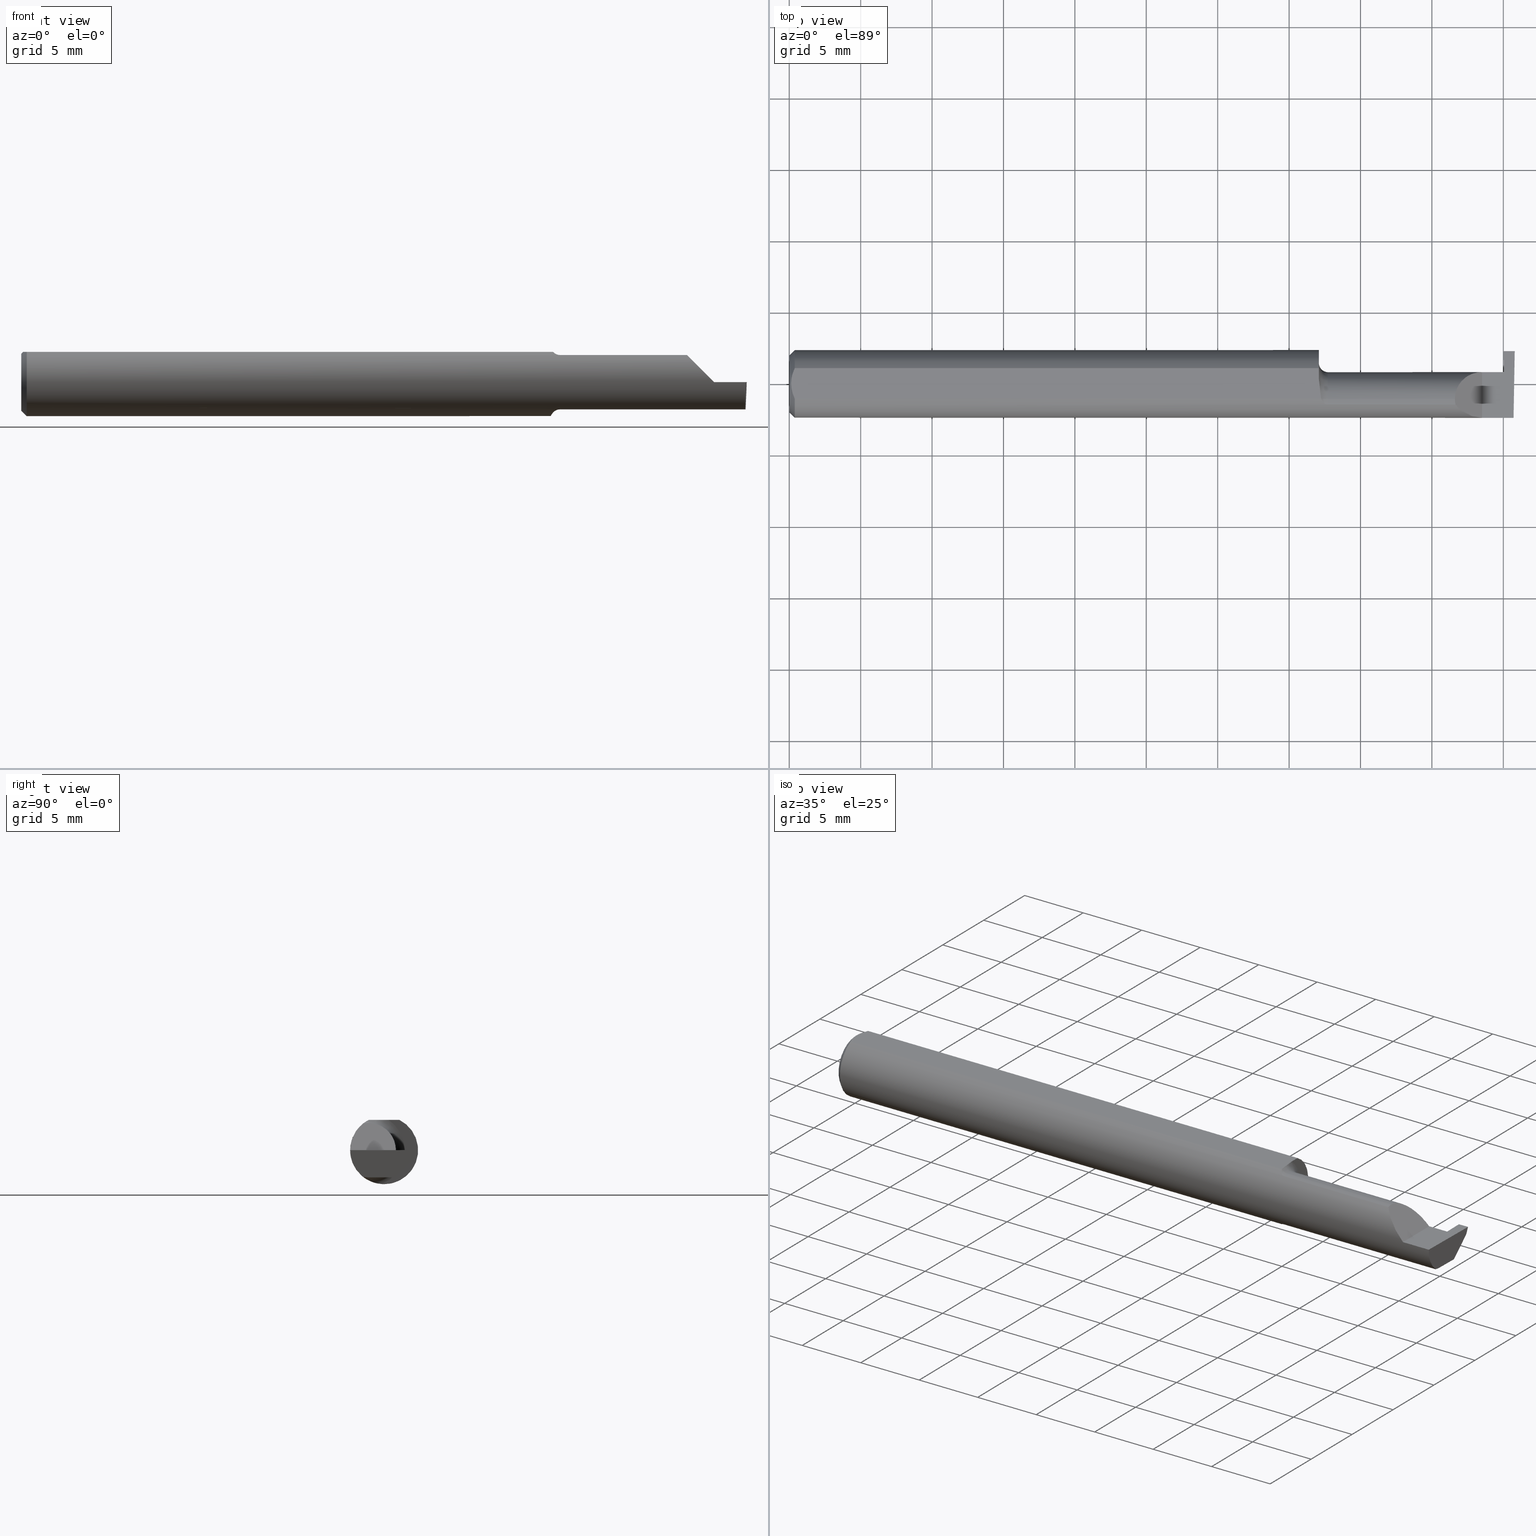
[diagram: canonical four-view strip — front | top / right | iso, engineering-drawing reading convention]
A machine part, canonical four-view strip (front | top / right | iso — engineering-drawing reading convention). The complete STEP part file that produces these views, byte-faithful:
ISO-10303-21;
HEADER;
FILE_DESCRIPTION (( 'STEP AP203' ),
    '1' );
FILE_NAME ('220674-GT030K-8.STEP',
    '2024-07-12T17:38:18',
    ( '' ),
    ( '' ),
    'SwSTEP 2.0',
    'SolidWorks 2024',
    '' );
FILE_SCHEMA (( 'CONFIG_CONTROL_DESIGN' ));
ENDSEC;

DATA;
#1 = CARTESIAN_POINT ( 'NONE',  ( 1.995715029210241243, -0.04259999999999997816, -0.07499999999999998335 ) ) ;
#2 = ORIENTED_EDGE ( 'NONE', *, *, #414, .T. ) ;
#3 = DIRECTION ( 'NONE',  ( -0.03056411404777943305, -0.3418603543644915810, -0.9392536042231929283 ) ) ;
#4 = AXIS2_PLACEMENT_3D ( 'NONE', #117, #581, #765 ) ;
#5 = DIRECTION ( 'NONE',  ( 0.000000000000000000, 0.000000000000000000, 1.000000000000000000 ) ) ;
#6 = VERTEX_POINT ( 'NONE', #578 ) ;
#7 = DIRECTION ( 'NONE',  ( 0.05230942393460497747, 0.000000000000000000, -0.9986309249005007604 ) ) ;
#8 = PERSON_AND_ORGANIZATION ( #118, #774 ) ;
#9 = CARTESIAN_POINT ( 'NONE',  ( 1.910000000000000142, 0.03239999999999999131, 1.102182119232621301E-17 ) ) ;
#10 = ADVANCED_FACE ( 'NONE', ( #171 ), #183, .F. ) ;
#11 = ORIENTED_EDGE ( 'NONE', *, *, #489, .F. ) ;
#12 = CARTESIAN_POINT ( 'NONE',  ( 1.484999999999999876, -0.04259999999999997816, 0.07499999999999998335 ) ) ;
#13 = PLANE ( 'NONE',  #407 ) ;
#14 = CC_DESIGN_PERSON_AND_ORGANIZATION_ASSIGNMENT ( #8, #325, ( #435 ) ) ;
#15 = ORIENTED_EDGE ( 'NONE', *, *, #110, .F. ) ;
#16 = FACE_OUTER_BOUND ( 'NONE', #206, .T. ) ;
#17 = VERTEX_POINT ( 'NONE', #655 ) ;
#18 = PLANE ( 'NONE',  #314 ) ;
#19 = ADVANCED_FACE ( 'NONE', ( #369 ), #13, .F. ) ;
#20 = CARTESIAN_POINT ( 'NONE',  ( 1.459999999999999964, -0.04259999999999998510, 0.07499999999999998335 ) ) ;
#21 = CARTESIAN_POINT ( 'NONE',  ( 2.000000000000000000, -0.04259999999999999204, -0.07499999999999998335 ) ) ;
#22 = VECTOR ( 'NONE', #722, 39.37007874015748854 ) ;
#23 = EDGE_CURVE ( 'NONE', #479, #6, #607, .T. ) ;
#24 = EDGE_LOOP ( 'NONE', ( #782, #269, #163, #208 ) ) ;
#25 =( BOUNDED_CURVE ( )  B_SPLINE_CURVE ( 3, ( #424, #535, #197, #9 ),
 .UNSPECIFIED., .F., .T. ) 
 B_SPLINE_CURVE_WITH_KNOTS ( ( 4, 4 ),
 ( 0.000000000000000000, 1.570796326794896558 ),
 .UNSPECIFIED. ) 
 CURVE ( )  GEOMETRIC_REPRESENTATION_ITEM ( )  RATIONAL_B_SPLINE_CURVE ( ( 1.000000000000000000, 0.8047378541243649375, 0.8047378541243649375, 1.000000000000000000 ) ) 
 REPRESENTATION_ITEM ( '' )  );
#26 = CARTESIAN_POINT ( 'NONE',  ( 0.004999999999999986226, 1.025183015402604432E-17, 0.08359999999999999376 ) ) ;
#27 = DIRECTION ( 'NONE',  ( 0.000000000000000000, 0.000000000000000000, 1.000000000000000000 ) ) ;
#28 = DIRECTION ( 'NONE',  ( 0.7071067811865481278, 0.000000000000000000, -0.7071067811865469066 ) ) ;
#29 = VERTEX_POINT ( 'NONE', #718 ) ;
#30 = CARTESIAN_POINT ( 'NONE',  ( 1.460436655799339123, -0.01945041057485635827, -0.09177104786119411051 ) ) ;
#31 = DIRECTION ( 'NONE',  ( -1.000000000000000000, -0.000000000000000000, -0.000000000000000000 ) ) ;
#32 = CC_DESIGN_APPROVAL ( #231, ( #435 ) ) ;
#33 = AXIS2_PLACEMENT_3D ( 'NONE', #638, #101, #343 ) ;
#34 = ORIENTED_EDGE ( 'NONE', *, *, #305, .F. ) ;
#35 = PRODUCT ( '220674-GT030K-8', '220674-GT030K-8', '', ( #233 ) ) ;
#36 = DIRECTION ( 'NONE',  ( -1.224646799147358877E-16, 0.000000000000000000, -1.000000000000000000 ) ) ;
#37 = CARTESIAN_POINT ( 'NONE',  ( 1.466356684838558522, -0.04259999999999997816, 0.08334386600104415344 ) ) ;
#38 = EDGE_CURVE ( 'NONE', #612, #393, #25, .T. ) ;
#39 = VERTEX_POINT ( 'NONE', #70 ) ;
#40 = LINE ( 'NONE', #55, #468 ) ;
#41 = DIRECTION ( 'NONE',  ( -0.03084274406794415904, -0.7067703747110382073, -0.7067703747110356538 ) ) ;
#42 = VERTEX_POINT ( 'NONE', #781 ) ;
#43 = EDGE_CURVE ( 'NONE', #42, #462, #312, .T. ) ;
#44 = DIRECTION ( 'NONE',  ( -0.7071067811865460184, 0.000000000000000000, 0.7071067811865490160 ) ) ;
#45 = FACE_OUTER_BOUND ( 'NONE', #242, .T. ) ;
#46 = ORIENTED_EDGE ( 'NONE', *, *, #275, .T. ) ;
#47 = VECTOR ( 'NONE', #293, 39.37007874015748143 ) ;
#48 = DIRECTION ( 'NONE',  ( 1.000000000000000000, 0.000000000000000000, 0.000000000000000000 ) ) ;
#49 = CARTESIAN_POINT ( 'NONE',  ( 0.000000000000000000, 0.000000000000000000, 0.000000000000000000 ) ) ;
#50 = EDGE_CURVE ( 'NONE', #39, #450, #366, .T. ) ;
#51 = ORIENTED_EDGE ( 'NONE', *, *, #414, .F. ) ;
#52 = ADVANCED_FACE ( 'NONE', ( #318 ), #261, .F. ) ;
#53 = CARTESIAN_POINT ( 'NONE',  ( 1.972825615918400111, -0.1004734632187760518, 3.327902248433222755E-18 ) ) ;
#54 = ORIENTED_EDGE ( 'NONE', *, *, #330, .T. ) ;
#55 = CARTESIAN_POINT ( 'NONE',  ( 1.970187911046528573, 0.08532170653269677274, -0.01716285901624537910 ) ) ;
#56 = DIRECTION ( 'NONE',  ( 0.04124162102273657565, 0.0006089328293544640823, -0.9991490168619624468 ) ) ;
#57 = ORIENTED_EDGE ( 'NONE', *, *, #591, .F. ) ;
#58 = VECTOR ( 'NONE', #100, 39.37007874015748143 ) ;
#59 = CIRCLE ( 'NONE', #287, 0.09359999999999998876 ) ;
#60 = DIRECTION ( 'NONE',  ( -1.000000000000000000, -0.000000000000000000, -0.000000000000000000 ) ) ;
#61 = FACE_OUTER_BOUND ( 'NONE', #24, .T. ) ;
#62 = ORIENTED_EDGE ( 'NONE', *, *, #348, .T. ) ;
#63 =( BOUNDED_CURVE ( )  B_SPLINE_CURVE ( 3, ( #313, #546, #565, #513 ),
 .UNSPECIFIED., .F., .T. ) 
 B_SPLINE_CURVE_WITH_KNOTS ( ( 4, 4 ),
 ( 0.08204942185700607460, 0.9826237902196914842 ),
 .UNSPECIFIED. ) 
 CURVE ( )  GEOMETRIC_REPRESENTATION_ITEM ( )  RATIONAL_B_SPLINE_CURVE ( ( 1.000000000000000000, 0.9335481000009943076, 0.9335481000009943076, 1.000000000000000000 ) ) 
 REPRESENTATION_ITEM ( '' )  );
#64 = CARTESIAN_POINT ( 'NONE',  ( 1.970284083932823727, 0.02994487577554157814, -0.01903262984222200277 ) ) ;
#65 = PERSON_AND_ORGANIZATION ( #118, #774 ) ;
#66 = DIRECTION ( 'NONE',  ( -0.000000000000000000, 1.000000000000000000, 1.224646799147353207E-16 ) ) ;
#67 = ORIENTED_EDGE ( 'NONE', *, *, #167, .T. ) ;
#68 = EDGE_CURVE ( 'NONE', #462, #419, #429, .T. ) ;
#69 = PLANE ( 'NONE',  #760 ) ;
#70 = CARTESIAN_POINT ( 'NONE',  ( 1.484999999999999876, -0.05810704225352113922, 0.07337936794867823409 ) ) ;
#71 = LINE ( 'NONE', #263, #138 ) ;
#72 = ADVANCED_FACE ( 'NONE', ( #61 ), #436, .T. ) ;
#73 = AXIS2_PLACEMENT_3D ( 'NONE', #323, #624, #276 ) ;
#74 = LINE ( 'NONE', #381, #601 ) ;
#75 = ORIENTED_EDGE ( 'NONE', *, *, #130, .F. ) ;
#76 = LINE ( 'NONE', #538, #448 ) ;
#77 = CC_DESIGN_DATE_AND_TIME_ASSIGNMENT ( #720, #599, ( #417 ) ) ;
#78 = CARTESIAN_POINT ( 'NONE',  ( 1.484999999999999876, -0.04259999999999998510, 0.000000000000000000 ) ) ;
#79 = VERTEX_POINT ( 'NONE', #486 ) ;
#80 = CARTESIAN_POINT ( 'NONE',  ( 1.470264545693809488, -0.04993027844100268037, -0.07924826417278514612 ) ) ;
#81 = DATE_AND_TIME ( #492, #337 ) ;
#82 = ORIENTED_EDGE ( 'NONE', *, *, #523, .F. ) ;
#83 = CARTESIAN_POINT ( 'NONE',  ( 1.476446782524424073, -0.05558685324519236498, -0.07531605361338915283 ) ) ;
#84 = CARTESIAN_POINT ( 'NONE',  ( 1.727249999999999952, -0.05810704225352113922, 0.07337936794867823409 ) ) ;
#85 = VECTOR ( 'NONE', #3, 39.37007874015748143 ) ;
#86 = CARTESIAN_POINT ( 'NONE',  ( 1.996678706298551376, -0.09994204647866641866, 4.067411700507134861E-19 ) ) ;
#87 = ORIENTED_EDGE ( 'NONE', *, *, #579, .F. ) ;
#88 = CARTESIAN_POINT ( 'NONE',  ( 0.01499999999999999944, 0.000000000000000000, -0.09359999999999998876 ) ) ;
#89 = AXIS2_PLACEMENT_3D ( 'NONE', #124, #548, #732 ) ;
#90 = ORIENTED_EDGE ( 'NONE', *, *, #744, .T. ) ;
#91 = CARTESIAN_POINT ( 'NONE',  ( 1.835000000000000187, -0.04781600192481537392, 0.07499999999999998335 ) ) ;
#92 = CARTESIAN_POINT ( 'NONE',  ( 1.969499999999999806, 0.03239999167003562025, -3.534818988851013615E-05 ) ) ;
#93 = LINE ( 'NONE', #21, #508 ) ;
#94 = ORIENTED_EDGE ( 'NONE', *, *, #235, .T. ) ;
#95 = DIRECTION ( 'NONE',  ( 0.02618093032612054880, 0.000000000000000000, 0.9996572206948033390 ) ) ;
#96 = LOCAL_TIME ( 10, 38, 18.00000000000000000, #385 ) ;
#97 = EDGE_CURVE ( 'NONE', #730, #39, #166, .T. ) ;
#98 = ORIENTED_EDGE ( 'NONE', *, *, #156, .T. ) ;
#99 = AXIS2_PLACEMENT_3D ( 'NONE', #697, #357, #176 ) ;
#100 = DIRECTION ( 'NONE',  ( -0.01744642479411313493, -0.9998477995484629233, 3.463134274570152404E-16 ) ) ;
#101 = DIRECTION ( 'NONE',  ( 1.000000000000000000, 0.000000000000000000, 0.000000000000000000 ) ) ;
#102 = ORIENTED_EDGE ( 'NONE', *, *, #252, .F. ) ;
#103 =( LENGTH_UNIT ( ) NAMED_UNIT ( * ) SI_UNIT ( $, .METRE. ) );
#104 = CARTESIAN_POINT ( 'NONE',  ( 0.005975039161239316735, -0.01453776427033148973, 0.08360000000000000764 ) ) ;
#105 = EDGE_LOOP ( 'NONE', ( #597, #224, #280, #51 ) ) ;
#106 = EDGE_CURVE ( 'NONE', #586, #644, #480, .T. ) ;
#107 = DIRECTION ( 'NONE',  ( 0.000000000000000000, -1.000000000000000000, 3.463308682636258767E-16 ) ) ;
#108 = DIRECTION ( 'NONE',  ( 0.000000000000000000, 0.000000000000000000, 1.000000000000000000 ) ) ;
#109 =( BOUNDED_CURVE ( )  B_SPLINE_CURVE ( 3, ( #616, #301, #534, #779 ),
 .UNSPECIFIED., .F., .T. ) 
 B_SPLINE_CURVE_WITH_KNOTS ( ( 4, 4 ),
 ( 3.140983202202990654, 4.455205321888858094 ),
 .UNSPECIFIED. ) 
 CURVE ( )  GEOMETRIC_REPRESENTATION_ITEM ( )  RATIONAL_B_SPLINE_CURVE ( ( 1.000000000000000000, 0.8611734602017921958, 0.8611734602017921958, 1.000000000000000000 ) ) 
 REPRESENTATION_ITEM ( '' )  );
#110 = EDGE_CURVE ( 'NONE', #262, #452, #74, .T. ) ;
#111 = ORIENTED_EDGE ( 'NONE', *, *, #387, .T. ) ;
#112 = TOROIDAL_SURFACE ( 'NONE', #227, 0.09999999999999999167, 0.02500000000000007425 ) ;
#113 = FACE_OUTER_BOUND ( 'NONE', #295, .T. ) ;
#114 = CARTESIAN_POINT ( 'NONE',  ( 0.009539353699420717939, -0.02875682547511373283, 0.08359999999999997988 ) ) ;
#115 = EDGE_LOOP ( 'NONE', ( #344, #125, #67, #54, #473 ) ) ;
#116 = DIRECTION ( 'NONE',  ( -0.7071067811865490160, 0.000000000000000000, -0.7071067811865460184 ) ) ;
#117 = CARTESIAN_POINT ( 'NONE',  ( 2.000000000000000000, -0.09360000000000003040, 0.08359999999999999376 ) ) ;
#118 = PERSON ( 'UNSPECIFIED', 'UNSPECIFIED', 'UNSPECIFIED', ('UNSPECIFIED'), ('UNSPECIFIED'), ('UNSPECIFIED') ) ;
#119 = ORIENTED_EDGE ( 'NONE', *, *, #289, .T. ) ;
#120 = CARTESIAN_POINT ( 'NONE',  ( 0.004999999999999974083, -0.007328888879231052096, 0.08359999999999997988 ) ) ;
#121 = CALENDAR_DATE ( 2024, 12, 7 ) ;
#122 = CARTESIAN_POINT ( 'NONE',  ( 1.995624014772495514, -0.04781600192481526984, -0.07499999999999996947 ) ) ;
#123 = LINE ( 'NONE', #202, #85 ) ;
#124 = CARTESIAN_POINT ( 'NONE',  ( 1.459999999999999964, -0.04259999999999998510, 0.000000000000000000 ) ) ;
#125 = ORIENTED_EDGE ( 'NONE', *, *, #294, .F. ) ;
#126 = CARTESIAN_POINT ( 'NONE',  ( 1.969499999999999806, 0.09040000000000000813, -3.918869757271545852E-19 ) ) ;
#127 = AXIS2_PLACEMENT_3D ( 'NONE', #551, #726, #5 ) ;
#128 = CARTESIAN_POINT ( 'NONE',  ( 1.899999999999999911, 0.09040000000000000813, -3.918869757271545852E-19 ) ) ;
#129 = ORIENTED_EDGE ( 'NONE', *, *, #356, .T. ) ;
#130 = EDGE_CURVE ( 'NONE', #536, #458, #531, .T. ) ;
#131 = CARTESIAN_POINT ( 'NONE',  ( 1.484999999999999876, -0.04259999999999997816, 0.000000000000000000 ) ) ;
#132 = EDGE_CURVE ( 'NONE', #29, #462, #162, .T. ) ;
#133 = CARTESIAN_POINT ( 'NONE',  ( 1.474746577633804234, -0.05429945193459817521, 0.07626038032150797563 ) ) ;
#134 = ORIENTED_EDGE ( 'NONE', *, *, #97, .T. ) ;
#135 = VECTOR ( 'NONE', #28, 39.37007874015748143 ) ;
#136 = CARTESIAN_POINT ( 'NONE',  ( 1.484999999999999876, -0.04259999999999997122, -0.07499999999999998335 ) ) ;
#137 = APPROVAL_DATE_TIME ( #737, #231 ) ;
#138 = VECTOR ( 'NONE', #155, 39.37007874015748143 ) ;
#139 = DIRECTION ( 'NONE',  ( 0.000000000000000000, 0.000000000000000000, -1.000000000000000000 ) ) ;
#140 = ORIENTED_EDGE ( 'NONE', *, *, #463, .F. ) ;
#141 = CARTESIAN_POINT ( 'NONE',  ( 1.969499999999999806, 0.03239999167003562025, -3.534818988851013615E-05 ) ) ;
#142 = VERTEX_POINT ( 'NONE', #483 ) ;
#143 = CARTESIAN_POINT ( 'NONE',  ( 1.474728336617688651, -0.05428341532129050961, -0.07627162539867091140 ) ) ;
#144 = ORIENTED_EDGE ( 'NONE', *, *, #561, .F. ) ;
#145 = DESIGN_CONTEXT ( 'detailed design', #223, 'design' ) ;
#146 = PLANE ( 'NONE',  #572 ) ;
#147 = PERSON_AND_ORGANIZATION ( #118, #774 ) ;
#148 = CARTESIAN_POINT ( 'NONE',  ( 1.969395642961975890, 0.09132040434161205200, 0.002528790145347101052 ) ) ;
#149 = VECTOR ( 'NONE', #180, 39.37007874015748143 ) ;
#150 = EDGE_CURVE ( 'NONE', #351, #359, #563, .T. ) ;
#151 = ORIENTED_EDGE ( 'NONE', *, *, #38, .F. ) ;
#152 = DIRECTION ( 'NONE',  ( 1.000000000000000000, 0.000000000000000000, 0.000000000000000000 ) ) ;
#153 = PLANE ( 'NONE',  #570 ) ;
#154 = ORIENTED_EDGE ( 'NONE', *, *, #387, .F. ) ;
#155 = DIRECTION ( 'NONE',  ( -1.000000000000000000, -7.220189035068028073E-16, 1.224646799147358877E-16 ) ) ;
#156 = EDGE_CURVE ( 'NONE', #215, #696, #747, .T. ) ;
#157 = ORIENTED_EDGE ( 'NONE', *, *, #23, .T. ) ;
#158 = DIRECTION ( 'NONE',  ( 0.000000000000000000, 0.000000000000000000, 1.000000000000000000 ) ) ;
#159 = CC_DESIGN_PERSON_AND_ORGANIZATION_ASSIGNMENT ( #556, #311, ( #240 ) ) ;
#160 = PLANE ( 'NONE',  #33 ) ;
#161 =( GEOMETRIC_REPRESENTATION_CONTEXT ( 3 ) GLOBAL_UNCERTAINTY_ASSIGNED_CONTEXT ( ( #185 ) ) GLOBAL_UNIT_ASSIGNED_CONTEXT ( ( #580, #519, #761 ) ) REPRESENTATION_CONTEXT ( 'NONE', 'WORKASPACE' ) );
#162 = CIRCLE ( 'NONE', #635, 0.02500000000000007425 ) ;
#163 = ORIENTED_EDGE ( 'NONE', *, *, #50, .F. ) ;
#164 = DIRECTION ( 'NONE',  ( -0.03699114979479856125, 0.7066228325057372084, 0.7066228325057346549 ) ) ;
#165 = DIRECTION ( 'NONE',  ( 0.000000000000000000, 0.000000000000000000, 1.000000000000000000 ) ) ;
#166 = B_SPLINE_CURVE_WITH_KNOTS ( 'NONE', 3,
 ( #476, #259, #602, #133, #431, #190, #610, #248 ),
 .UNSPECIFIED., .F., .F.,
 ( 4, 2, 2, 4 ),
 ( 1.584523690453573094E-05, 0.0003656721978374746925, 0.0005405856783039505531, 0.0007154991587704265764 ),
 .UNSPECIFIED. ) ;
#167 = EDGE_CURVE ( 'NONE', #458, #288, #440, .T. ) ;
#168 = ORIENTED_EDGE ( 'NONE', *, *, #630, .F. ) ;
#169 = AXIS2_PLACEMENT_3D ( 'NONE', #316, #596, #194 ) ;
#170 = DIRECTION ( 'NONE',  ( 0.01742050049977865445, -0.9998482515673751125, -2.130797594925077101E-18 ) ) ;
#171 = FACE_OUTER_BOUND ( 'NONE', #512, .T. ) ;
#172 = PERSON_AND_ORGANIZATION_ROLE ( 'design_owner' ) ;
#173 = CARTESIAN_POINT ( 'NONE',  ( 1.484999999999999876, -0.04259999999999998510, 0.000000000000000000 ) ) ;
#174 = LOCAL_TIME ( 10, 38, 18.00000000000000000, #646 ) ;
#175 = ORIENTED_EDGE ( 'NONE', *, *, #567, .F. ) ;
#176 = DIRECTION ( 'NONE',  ( 0.000000000000000000, 0.000000000000000000, 1.000000000000000000 ) ) ;
#177 = CIRCLE ( 'NONE', #647, 0.09359999999999998876 ) ;
#178 = LINE ( 'NONE', #418, #211 ) ;
#179 = VERTEX_POINT ( 'NONE', #675 ) ;
#180 = DIRECTION ( 'NONE',  ( -1.000000000000000000, -0.000000000000000000, -0.000000000000000000 ) ) ;
#181 = COORDINATED_UNIVERSAL_TIME_OFFSET ( 8, 0, .BEHIND. ) ;
#182 = ADVANCED_FACE ( 'NONE', ( #327 ), #212, .F. ) ;
#183 = PLANE ( 'NONE',  #728 ) ;
#184 = DIRECTION ( 'NONE',  ( -1.000000000000000000, -0.000000000000000000, -0.000000000000000000 ) ) ;
#185 = UNCERTAINTY_MEASURE_WITH_UNIT (LENGTH_MEASURE( 1.000000000000000082E-05 ), #580, 'distance_accuracy_value', 'NONE');
#186 = DIRECTION ( 'NONE',  ( -1.000000000000000000, -0.000000000000000000, -0.000000000000000000 ) ) ;
#187 = EDGE_LOOP ( 'NONE', ( #416, #507, #748, #767, #236, #619, #232 ) ) ;
#188 = VECTOR ( 'NONE', #481, 39.37007874015748143 ) ;
#189 = CARTESIAN_POINT ( 'NONE',  ( 0.01499999999999999944, 0.000000000000000000, 0.000000000000000000 ) ) ;
#190 = CARTESIAN_POINT ( 'NONE',  ( 1.480389214148234434, -0.05750155061631040398, 0.07386444488392698848 ) ) ;
#191 = EDGE_CURVE ( 'NONE', #644, #42, #93, .T. ) ;
#192 = CARTESIAN_POINT ( 'NONE',  ( 1.974734127201016820, 0.09049136203013627422, -0.1499086240528643699 ) ) ;
#193 = ADVANCED_FACE ( 'NONE', ( #547 ), #153, .F. ) ;
#194 = DIRECTION ( 'NONE',  ( 0.000000000000000000, 0.0006094513490878463065, -0.9999998142845092364 ) ) ;
#195 = ORIENTED_EDGE ( 'NONE', *, *, #243, .F. ) ;
#196 = CARTESIAN_POINT ( 'NONE',  ( 0.000000000000000000, 0.000000000000000000, -0.07860000000000001708 ) ) ;
#197 = CARTESIAN_POINT ( 'NONE',  ( 1.866066017177982594, 0.03239999999999998437, 0.04393398282201787380 ) ) ;
#198 = DIMENSIONAL_EXPONENTS ( 1.000000000000000000, 0.000000000000000000, 0.000000000000000000, 0.000000000000000000, 0.000000000000000000, 0.000000000000000000, 0.000000000000000000 ) ;
#199 = APPROVAL_PERSON_ORGANIZATION ( #614, #231, #434 ) ;
#200 = LOCAL_TIME ( 10, 38, 18.00000000000000000, #181 ) ;
#201 = VECTOR ( 'NONE', #626, 39.37007874015748143 ) ;
#202 = CARTESIAN_POINT ( 'NONE',  ( 1.999906583493247680, 0.08935513411407894346, -0.002870745427926564477 ) ) ;
#203 = AXIS2_PLACEMENT_3D ( 'NONE', #686, #444, #221 ) ;
#204 = CARTESIAN_POINT ( 'NONE',  ( 1.459999999999999742, -0.09360000000000003040, 0.08359999999999999376 ) ) ;
#205 = ORIENTED_EDGE ( 'NONE', *, *, #684, .F. ) ;
#206 = EDGE_LOOP ( 'NONE', ( #370, #333, #388 ) ) ;
#207 = FACE_OUTER_BOUND ( 'NONE', #495, .T. ) ;
#208 = ORIENTED_EDGE ( 'NONE', *, *, #243, .T. ) ;
#209 = CARTESIAN_POINT ( 'NONE',  ( 1.459999999999999742, -0.006757276995305157297, -0.09335576686851604356 ) ) ;
#210 = DIRECTION ( 'NONE',  ( -1.000000000000000000, -0.000000000000000000, -0.000000000000000000 ) ) ;
#211 = VECTOR ( 'NONE', #56, 39.37007874015748143 ) ;
#212 = PLANE ( 'NONE',  #298 ) ;
#213 = PRODUCT_DEFINITION_SHAPE ( 'NONE', 'NONE',  #417 ) ;
#214 = EDGE_CURVE ( 'NONE', #685, #730, #543, .T. ) ;
#215 = VERTEX_POINT ( 'NONE', #755 ) ;
#216 = CARTESIAN_POINT ( 'NONE',  ( 2.000000000000000000, -0.1000000000000000056, 0.000000000000000000 ) ) ;
#217 = CARTESIAN_POINT ( 'NONE',  ( 0.01499999999999999944, 0.000000000000000000, -0.09359999999999998876 ) ) ;
#218 = ADVANCED_FACE ( 'NONE', ( #633 ), #682, .T. ) ;
#219 = CC_DESIGN_PERSON_AND_ORGANIZATION_ASSIGNMENT ( #704, #172, ( #35 ) ) ;
#220 = ORIENTED_EDGE ( 'NONE', *, *, #762, .T. ) ;
#221 = DIRECTION ( 'NONE',  ( 0.000000000000000000, 0.000000000000000000, -1.000000000000000000 ) ) ;
#222 = CARTESIAN_POINT ( 'NONE',  ( 1.459999999999999964, -0.04259999999999998510, 0.000000000000000000 ) ) ;
#223 = APPLICATION_CONTEXT ( 'configuration controlled 3d designs of mechanical parts and assemblies' ) ;
#224 = ORIENTED_EDGE ( 'NONE', *, *, #762, .F. ) ;
#225 = CARTESIAN_POINT ( 'NONE',  ( 2.000000000000000000, 0.05599964285600403380, -0.07500000000000002498 ) ) ;
#226 = CARTESIAN_POINT ( 'NONE',  ( 1.466082007218903138, -0.03301619840524110810, 0.08359999999999997988 ) ) ;
#227 = AXIS2_PLACEMENT_3D ( 'NONE', #131, #184, #783 ) ;
#228 = ORIENTED_EDGE ( 'NONE', *, *, #156, .F. ) ;
#229 = CARTESIAN_POINT ( 'NONE',  ( 1.997436282896842163, 0.05604437736224970185, -0.07500000000000002498 ) ) ;
#230 = CARTESIAN_POINT ( 'NONE',  ( 1.969499999999999806, 0.03240000000000000518, 6.613082478491649597E-17 ) ) ;
#231 = APPROVAL ( #264, 'UNSPECIFIED' ) ;
#232 = ORIENTED_EDGE ( 'NONE', *, *, #332, .T. ) ;
#233 = MECHANICAL_CONTEXT ( 'NONE', #365, 'mechanical' ) ;
#234 = CARTESIAN_POINT ( 'NONE',  ( 0.004999999999999986226, 1.025183015402604432E-17, 0.08359999999999999376 ) ) ;
#235 = EDGE_CURVE ( 'NONE', #79, #456, #395, .T. ) ;
#236 = ORIENTED_EDGE ( 'NONE', *, *, #214, .T. ) ;
#237 = DIRECTION ( 'NONE',  ( -0.000000000000000000, 3.463308682636258767E-16, 1.000000000000000000 ) ) ;
#238 = LINE ( 'NONE', #53, #390 ) ;
#239 = DATE_AND_TIME ( #247, #174 ) ;
#240 = PRODUCT_DEFINITION_FORMATION_WITH_SPECIFIED_SOURCE ( 'ANY', '', #35, .NOT_KNOWN. ) ;
#241 = VECTOR ( 'NONE', #272, 39.37007874015748143 ) ;
#242 = EDGE_LOOP ( 'NONE', ( #582, #134, #443 ) ) ;
#243 = EDGE_CURVE ( 'NONE', #39, #179, #510, .T. ) ;
#244 = LINE ( 'NONE', #349, #725 ) ;
#245 = PERSON_AND_ORGANIZATION ( #118, #774 ) ;
#246 = ORIENTED_EDGE ( 'NONE', *, *, #289, .F. ) ;
#247 = CALENDAR_DATE ( 2024, 12, 7 ) ;
#248 = CARTESIAN_POINT ( 'NONE',  ( 1.484999999999999876, -0.05810704225352113922, 0.07337936794867823409 ) ) ;
#249 = ORIENTED_EDGE ( 'NONE', *, *, #294, .T. ) ;
#250 = LINE ( 'NONE', #656, #188 ) ;
#251 = COORDINATED_UNIVERSAL_TIME_OFFSET ( 8, 0, .BEHIND. ) ;
#252 = EDGE_CURVE ( 'NONE', #304, #179, #271, .T. ) ;
#253 = DIRECTION ( 'NONE',  ( 1.000000000000000000, 0.000000000000000000, 0.000000000000000000 ) ) ;
#254 = ADVANCED_FACE ( 'NONE', ( #695 ), #160, .T. ) ;
#255 = ORIENTED_EDGE ( 'NONE', *, *, #506, .F. ) ;
#256 = AXIS2_PLACEMENT_3D ( 'NONE', #460, #643, #108 ) ;
#257 = CARTESIAN_POINT ( 'NONE',  ( 1.996937940439960535, 0.02748456554894196727, -0.07499999999999998335 ) ) ;
#258 =( BOUNDED_CURVE ( )  B_SPLINE_CURVE ( 3, ( #394, #691, #91, #389 ),
 .UNSPECIFIED., .F., .F. ) 
 B_SPLINE_CURVE_WITH_KNOTS ( ( 4, 4 ),
 ( 6.074922494366326475, 6.283185307179586232 ),
 .UNSPECIFIED. ) 
 CURVE ( )  GEOMETRIC_REPRESENTATION_ITEM ( )  RATIONAL_B_SPLINE_CURVE ( ( 1.000000000000000000, 0.9963888149483994816, 0.9963888149483994816, 1.000000000000000000 ) ) 
 REPRESENTATION_ITEM ( '' )  );
#259 = CARTESIAN_POINT ( 'NONE',  ( 1.468098441794898346, -0.04641417426599063478, 0.08139430652501544738 ) ) ;
#260 = FACE_OUTER_BOUND ( 'NONE', #105, .T. ) ;
#261 = PLANE ( 'NONE',  #169 ) ;
#262 = VERTEX_POINT ( 'NONE', #566 ) ;
#263 = CARTESIAN_POINT ( 'NONE',  ( 2.000000000000000000, 0.03240000000000002600, 1.170704816173023527E-32 ) ) ;
#264 = APPROVAL_STATUS ( 'not_yet_approved' ) ;
#265 = ORIENTED_EDGE ( 'NONE', *, *, #744, .F. ) ;
#266 = DIRECTION ( 'NONE',  ( 1.000000000000000000, 0.000000000000000000, 0.000000000000000000 ) ) ;
#267 = EDGE_CURVE ( 'NONE', #699, #452, #562, .T. ) ;
#268 = CYLINDRICAL_SURFACE ( 'NONE', #494, 0.09359999999999998876 ) ;
#269 = ORIENTED_EDGE ( 'NONE', *, *, #273, .T. ) ;
#270 = CARTESIAN_POINT ( 'NONE',  ( 1.484999999999999876, -0.05810704225352111146, -0.07337936794867824797 ) ) ;
#271 =( BOUNDED_CURVE ( )  B_SPLINE_CURVE ( 3, ( #625, #751, #455, #331 ),
 .UNSPECIFIED., .F., .T. ) 
 B_SPLINE_CURVE_WITH_KNOTS ( ( 4, 4 ),
 ( 4.712388980384689674, 5.613420356061716632 ),
 .UNSPECIFIED. ) 
 CURVE ( )  GEOMETRIC_REPRESENTATION_ITEM ( )  RATIONAL_B_SPLINE_CURVE ( ( 1.000000000000000000, 0.9334817841311877640, 0.9334817841311877640, 1.000000000000000000 ) ) 
 REPRESENTATION_ITEM ( '' )  );
#272 = DIRECTION ( 'NONE',  ( -0.000000000000000000, 1.000000000000000000, -0.000000000000000000 ) ) ;
#273 = EDGE_CURVE ( 'NONE', #612, #450, #326, .T. ) ;
#274 = ORIENTED_EDGE ( 'NONE', *, *, #428, .T. ) ;
#275 = EDGE_CURVE ( 'NONE', #304, #393, #340, .T. ) ;
#276 = DIRECTION ( 'NONE',  ( 0.000000000000000000, 0.000000000000000000, -1.000000000000000000 ) ) ;
#277 = VECTOR ( 'NONE', #618, 39.37007874015748143 ) ;
#278 = CARTESIAN_POINT ( 'NONE',  ( 1.466129652885479251, -0.04209513035970094408, 0.08359999999999999376 ) ) ;
#279 = APPROVAL ( #780, 'UNSPECIFIED' ) ;
#280 = ORIENTED_EDGE ( 'NONE', *, *, #545, .T. ) ;
#281 = LINE ( 'NONE', #628, #341 ) ;
#282 = ORIENTED_EDGE ( 'NONE', *, *, #252, .T. ) ;
#283 = CARTESIAN_POINT ( 'NONE',  ( 0.01499999999999999944, 1.146269404001922621E-17, 0.09359999999999998876 ) ) ;
#284 = CARTESIAN_POINT ( 'NONE',  ( 1.910000000000000142, -0.1000000000000000056, 1.102182119232621301E-17 ) ) ;
#285 = EDGE_LOOP ( 'NONE', ( #592, #98, #437, #2, #690, #140, #342 ) ) ;
#286 = PLANE ( 'NONE',  #374 ) ;
#287 = AXIS2_PLACEMENT_3D ( 'NONE', #770, #60, #165 ) ;
#288 = VERTEX_POINT ( 'NONE', #217 ) ;
#289 = EDGE_CURVE ( 'NONE', #79, #699, #741, .T. ) ;
#290 = CARTESIAN_POINT ( 'NONE',  ( 0.01499999999999999598, 0.04209513035969836975, 0.08359999999999999376 ) ) ;
#291 = ORIENTED_EDGE ( 'NONE', *, *, #267, .T. ) ;
#292 = DIRECTION ( 'NONE',  ( 0.7071067811865481278, 8.659560562354925463E-17, 0.7071067811865469066 ) ) ;
#293 = DIRECTION ( 'NONE',  ( -1.000000000000000000, -0.000000000000000000, -0.000000000000000000 ) ) ;
#294 = EDGE_CURVE ( 'NONE', #458, #536, #403, .T. ) ;
#295 = EDGE_LOOP ( 'NONE', ( #739, #102, #46, #151 ) ) ;
#296 = CARTESIAN_POINT ( 'NONE',  ( 0.000000000000000000, 0.04209513035969836975, 0.08359999999999999376 ) ) ;
#297 = APPROVAL_PERSON_ORGANIZATION ( #65, #713, #539 ) ;
#298 = AXIS2_PLACEMENT_3D ( 'NONE', #689, #396, #557 ) ;
#299 = ORIENTED_EDGE ( 'NONE', *, *, #150, .T. ) ;
#300 = AXIS2_PLACEMENT_3D ( 'NONE', #496, #745, #158 ) ;
#301 = CARTESIAN_POINT ( 'NONE',  ( 1.973214534726833946, -0.007134900077140474139, -0.07500000000000002498 ) ) ;
#302 = CARTESIAN_POINT ( 'NONE',  ( 1.970284083932825281, -1.938781723943637347, -0.02023247314723547463 ) ) ;
#303 = VECTOR ( 'NONE', #669, 39.37007874015748143 ) ;
#304 = VERTEX_POINT ( 'NONE', #399 ) ;
#305 = EDGE_CURVE ( 'NONE', #479, #503, #702, .T. ) ;
#306 = DIRECTION ( 'NONE',  ( 0.9992391710281356421, 0.01740988840157116357, 0.03489949668475363781 ) ) ;
#307 = APPROVAL_STATUS ( 'not_yet_approved' ) ;
#308 = CARTESIAN_POINT ( 'NONE',  ( 0.000000000000000000, 0.000000000000000000, 0.000000000000000000 ) ) ;
#309 = ORIENTED_EDGE ( 'NONE', *, *, #191, .F. ) ;
#310 = CARTESIAN_POINT ( 'NONE',  ( 0.000000000000000000, 1.054420894065871180E-17, 0.07860000000000001708 ) ) ;
#311 = PERSON_AND_ORGANIZATION_ROLE ( 'design_supplier' ) ;
#312 = LINE ( 'NONE', #422, #303 ) ;
#313 = CARTESIAN_POINT ( 'NONE',  ( 1.995486889784650053, -0.05810704225352113922, -0.07337936794867823409 ) ) ;
#314 = AXIS2_PLACEMENT_3D ( 'NONE', #216, #36, #555 ) ;
#315 = CALENDAR_DATE ( 2024, 12, 7 ) ;
#316 = CARTESIAN_POINT ( 'NONE',  ( 1.975744671832483812, 0.03249136206948449734, -0.1499086886162006582 ) ) ;
#317 = EDGE_LOOP ( 'NONE', ( #119, #291, #15, #129, #220 ) ) ;
#318 = FACE_OUTER_BOUND ( 'NONE', #541, .T. ) ;
#319 = ADVANCED_FACE ( 'NONE', ( #335 ), #268, .T. ) ;
#320 = EDGE_LOOP ( 'NONE', ( #671, #641, #408 ) ) ;
#321 = CARTESIAN_POINT ( 'NONE',  ( 1.466356684838558522, -0.04259999999999997122, -0.08334386600104412568 ) ) ;
#322 = ORIENTED_EDGE ( 'NONE', *, *, #348, .F. ) ;
#323 = CARTESIAN_POINT ( 'NONE',  ( 1.484999999999999876, -0.04259999999999997816, 0.09999999999999999167 ) ) ;
#324 = TOROIDAL_SURFACE ( 'NONE', #256, 0.09999999999999999167, 0.02500000000000007425 ) ;
#325 = PERSON_AND_ORGANIZATION_ROLE ( 'classification_officer' ) ;
#326 = LINE ( 'NONE', #20, #734 ) ;
#327 = FACE_OUTER_BOUND ( 'NONE', #317, .T. ) ;
#328 = VERTEX_POINT ( 'NONE', #758 ) ;
#329 = DIRECTION ( 'NONE',  ( -1.000000000000000000, -0.000000000000000000, -0.000000000000000000 ) ) ;
#330 = EDGE_CURVE ( 'NONE', #288, #525, #59, .T. ) ;
#331 = CARTESIAN_POINT ( 'NONE',  ( 1.836620632051322310, -0.05810704225352133351, 0.07337936794867813695 ) ) ;
#332 = EDGE_CURVE ( 'NONE', #450, #462, #482, .T. ) ;
#333 = ORIENTED_EDGE ( 'NONE', *, *, #354, .T. ) ;
#334 = CARTESIAN_POINT ( 'NONE',  ( 1.970284083932825281, -1.938781723943637347, -0.02023247314723547463 ) ) ;
#335 = FACE_OUTER_BOUND ( 'NONE', #397, .T. ) ;
#336 = ORIENTED_EDGE ( 'NONE', *, *, #606, .F. ) ;
#337 = LOCAL_TIME ( 10, 38, 18.00000000000000000, #251 ) ;
#338 = CARTESIAN_POINT ( 'NONE',  ( 1.459999999999999742, 0.000000000000000000, 0.000000000000000000 ) ) ;
#339 = AXIS2_PLACEMENT_3D ( 'NONE', #738, #678, #27 ) ;
#340 = LINE ( 'NONE', #284, #241 ) ;
#341 = VECTOR ( 'NONE', #266, 39.37007874015748143 ) ;
#342 = ORIENTED_EDGE ( 'NONE', *, *, #275, .F. ) ;
#343 = DIRECTION ( 'NONE',  ( 0.000000000000000000, 0.000000000000000000, -1.000000000000000000 ) ) ;
#344 = ORIENTED_EDGE ( 'NONE', *, *, #766, .F. ) ;
#345 = LENGTH_MEASURE_WITH_UNIT ( LENGTH_MEASURE( 0.02539999999999999897 ), #103 );
#346 = LINE ( 'NONE', #520, #584 ) ;
#347 = ORIENTED_EDGE ( 'NONE', *, *, #721, .T. ) ;
#348 = EDGE_CURVE ( 'NONE', #328, #652, #752, .T. ) ;
#349 = CARTESIAN_POINT ( 'NONE',  ( 1.994172072281005237, -0.09355431490906530867, -0.09996576130738771271 ) ) ;
#350 = AXIS2_PLACEMENT_3D ( 'NONE', #192, #306, #438 ) ;
#351 = VERTEX_POINT ( 'NONE', #467 ) ;
#352 = APPLICATION_PROTOCOL_DEFINITION ( 'international standard', 'config_control_design', 1994, #223 ) ;
#353 = CARTESIAN_POINT ( 'NONE',  ( 0.01206089165507020187, -0.03555991978469316694, 0.08359999999999999376 ) ) ;
#354 = EDGE_CURVE ( 'NONE', #503, #6, #178, .T. ) ;
#355 = ORIENTED_EDGE ( 'NONE', *, *, #629, .F. ) ;
#356 = EDGE_CURVE ( 'NONE', #262, #465, #711, .T. ) ;
#357 = DIRECTION ( 'NONE',  ( -1.000000000000000000, -0.000000000000000000, -0.000000000000000000 ) ) ;
#358 = LINE ( 'NONE', #296, #47 ) ;
#359 = VERTEX_POINT ( 'NONE', #420 ) ;
#360 = CARTESIAN_POINT ( 'NONE',  ( 0.01499999999999999944, -0.04209513035969836975, 0.08359999999999999376 ) ) ;
#361 = DIRECTION ( 'NONE',  ( -1.000000000000000000, -0.000000000000000000, -0.000000000000000000 ) ) ;
#362 = ORIENTED_EDGE ( 'NONE', *, *, #110, .T. ) ;
#363 = CARTESIAN_POINT ( 'NONE',  ( 1.973215639910378627, 0.03244570701694828724, -0.07499697642507775763 ) ) ;
#364 = DIRECTION ( 'NONE',  ( 0.000000000000000000, -0.9396926207859080948, 0.3420201433256697121 ) ) ;
#365 = APPLICATION_CONTEXT ( 'configuration controlled 3d designs of mechanical parts and assemblies' ) ;
#366 = CIRCLE ( 'NONE', #700, 0.07499999999999998335 ) ;
#367 = EDGE_LOOP ( 'NONE', ( #255, #665, #676, #756, #549, #533, #347, #34 ) ) ;
#368 = CYLINDRICAL_SURFACE ( 'NONE', #622, 0.07499999999999998335 ) ;
#369 = FACE_OUTER_BOUND ( 'NONE', #735, .T. ) ;
#370 = ORIENTED_EDGE ( 'NONE', *, *, #305, .T. ) ;
#371 = ADVANCED_FACE ( 'NONE', ( #701 ), #457, .T. ) ;
#372 = DIRECTION ( 'NONE',  ( -0.03489418134011375294, -0.0006090802009084600238, 0.9993908270190957621 ) ) ;
#373 = CC_DESIGN_APPROVAL ( #713, ( #240 ) ) ;
#374 = AXIS2_PLACEMENT_3D ( 'NONE', #709, #116, #44 ) ;
#375 = VECTOR ( 'NONE', #687, 39.37007874015748143 ) ;
#376 = ORIENTED_EDGE ( 'NONE', *, *, #684, .T. ) ;
#377 = CARTESIAN_POINT ( 'NONE',  ( 1.972956086143512255, 0.03244268712522563325, -0.07004187842367258499 ) ) ;
#378 = AXIS2_PLACEMENT_3D ( 'NONE', #189, #427, #485 ) ;
#379 = PERSON_AND_ORGANIZATION_ROLE ( 'creator' ) ;
#380 = EDGE_CURVE ( 'NONE', #215, #304, #475, .T. ) ;
#381 = CARTESIAN_POINT ( 'NONE',  ( 2.000000000000000000, 0.02748456554894193257, -0.07500000000000001110 ) ) ;
#382 = ORIENTED_EDGE ( 'NONE', *, *, #433, .T. ) ;
#383 = FACE_OUTER_BOUND ( 'NONE', #187, .T. ) ;
#384 = ORIENTED_EDGE ( 'NONE', *, *, #591, .T. ) ;
#385 = COORDINATED_UNIVERSAL_TIME_OFFSET ( 8, 0, .BEHIND. ) ;
#386 = CARTESIAN_POINT ( 'NONE',  ( 1.970284083932823727, 0.02994487577554157814, -0.01903262984222200277 ) ) ;
#387 = EDGE_CURVE ( 'NONE', #142, #215, #244, .T. ) ;
#388 = ORIENTED_EDGE ( 'NONE', *, *, #23, .F. ) ;
#389 = CARTESIAN_POINT ( 'NONE',  ( 1.835000000000000409, -0.04259999999999998510, 0.07499999999999998335 ) ) ;
#390 = VECTOR ( 'NONE', #170, 39.37007874015748854 ) ;
#391 = DIRECTION ( 'NONE',  ( 0.000000000000000000, 0.000000000000000000, 1.000000000000000000 ) ) ;
#392 = EDGE_CURVE ( 'NONE', #359, #328, #358, .T. ) ;
#393 = VERTEX_POINT ( 'NONE', #705 ) ;
#394 = CARTESIAN_POINT ( 'NONE',  ( 1.836620632051322310, -0.05810704225352133351, 0.07337936794867813695 ) ) ;
#395 = LINE ( 'NONE', #148, #775 ) ;
#396 = DIRECTION ( 'NONE',  ( 0.000000000000000000, -0.7071067811865462405, 0.7071067811865487940 ) ) ;
#397 = EDGE_LOOP ( 'NONE', ( #518, #111, #564, #282, #195, #627, #759, #205, #484, #87, #498, #336, #355, #57, #168 ) ) ;
#398 = CARTESIAN_POINT ( 'NONE',  ( 1.480389671955115949, -0.05750350940205799927, -0.07386306649500064270 ) ) ;
#399 = CARTESIAN_POINT ( 'NONE',  ( 1.910000000000000142, -0.09359999999999998876, 1.102182119232621301E-17 ) ) ;
#400 = ORIENTED_EDGE ( 'NONE', *, *, #130, .T. ) ;
#401 = CARTESIAN_POINT ( 'NONE',  ( 1.459999999999999742, -0.04259999999999998510, 0.000000000000000000 ) ) ;
#402 = VECTOR ( 'NONE', #292, 39.37007874015748143 ) ;
#403 = CIRCLE ( 'NONE', #339, 0.07860000000000001708 ) ;
#404 = CARTESIAN_POINT ( 'NONE',  ( 1.997382703856816155, 0.09044568507411562819, -0.09996573249755577595 ) ) ;
#405 = ORIENTED_EDGE ( 'NONE', *, *, #68, .T. ) ;
#406 = CARTESIAN_POINT ( 'NONE',  ( 1.464570820222979908, -0.02392027542784326555, 0.08360000000000000764 ) ) ;
#407 = AXIS2_PLACEMENT_3D ( 'NONE', #128, #364, #664 ) ;
#408 = ORIENTED_EDGE ( 'NONE', *, *, #659, .T. ) ;
#409 = DIRECTION ( 'NONE',  ( 0.000000000000000000, 0.000000000000000000, 1.000000000000000000 ) ) ;
#410 = CARTESIAN_POINT ( 'NONE',  ( 1.484999999999999876, -0.05810704225352111146, -0.07337936794867824797 ) ) ;
#411 = ORIENTED_EDGE ( 'NONE', *, *, #766, .T. ) ;
#412 = EDGE_CURVE ( 'NONE', #685, #351, #600, .T. ) ;
#413 = CARTESIAN_POINT ( 'NONE',  ( 1.459999999999999742, 0.01227294415283364248, 0.08359999999999999376 ) ) ;
#414 = EDGE_CURVE ( 'NONE', #456, #17, #238, .T. ) ;
#415 = AXIS2_PLACEMENT_3D ( 'NONE', #401, #504, #740 ) ;
#416 = ORIENTED_EDGE ( 'NONE', *, *, #132, .F. ) ;
#417 = PRODUCT_DEFINITION ( 'UNKNOWN', '', #240, #145 ) ;
#418 = CARTESIAN_POINT ( 'NONE',  ( 1.970284083932823727, 0.03241159854787072775, -0.01903112649442138815 ) ) ;
#419 = VERTEX_POINT ( 'NONE', #410 ) ;
#420 = CARTESIAN_POINT ( 'NONE',  ( 1.459999999999999742, 0.04209513035969834893, 0.08359999999999999376 ) ) ;
#421 = PERSON_AND_ORGANIZATION ( #118, #774 ) ;
#422 = CARTESIAN_POINT ( 'NONE',  ( 1.459999999999999964, -0.04259999999999997816, -0.07499999999999998335 ) ) ;
#423 = DIRECTION ( 'NONE',  ( 0.000000000000000000, 0.000000000000000000, 1.000000000000000000 ) ) ;
#424 = CARTESIAN_POINT ( 'NONE',  ( 1.835000000000000409, -0.04259999999999998510, 0.07499999999999998335 ) ) ;
#425 = PRODUCT_RELATED_PRODUCT_CATEGORY ( 'detail', '', ( #35 ) ) ;
#426 = EDGE_LOOP ( 'NONE', ( #764, #309, #778, #634, #558 ) ) ;
#427 = DIRECTION ( 'NONE',  ( 1.000000000000000000, 0.000000000000000000, 0.000000000000000000 ) ) ;
#428 = EDGE_CURVE ( 'NONE', #652, #525, #470, .T. ) ;
#429 = CIRCLE ( 'NONE', #127, 0.07499999999999998335 ) ;
#430 = LINE ( 'NONE', #663, #637 ) ;
#431 = CARTESIAN_POINT ( 'NONE',  ( 1.476469028275930517, -0.05559939362423894915, 0.07530665289274067475 ) ) ;
#432 = ORIENTED_EDGE ( 'NONE', *, *, #506, .T. ) ;
#433 = EDGE_CURVE ( 'NONE', #456, #696, #346, .T. ) ;
#434 = APPROVAL_ROLE ( '' ) ;
#435 = SECURITY_CLASSIFICATION ( '', '', #681 ) ;
#436 = CYLINDRICAL_SURFACE ( 'NONE', #89, 0.07499999999999998335 ) ;
#437 = ORIENTED_EDGE ( 'NONE', *, *, #433, .F. ) ;
#438 = DIRECTION ( 'NONE',  ( 0.03490478697967554916, 0.000000000000000000, -0.9993906422645267851 ) ) ;
#439 = CIRCLE ( 'NONE', #99, 0.07499999999999999722 ) ;
#440 = LINE ( 'NONE', #88, #135 ) ;
#441 = CARTESIAN_POINT ( 'NONE',  ( 1.482653034764491728, -0.05810704225352129881, -0.07337936794867812307 ) ) ;
#442 = ADVANCED_FACE ( 'NONE', ( #45 ), #324, .F. ) ;
#443 = ORIENTED_EDGE ( 'NONE', *, *, #50, .T. ) ;
#444 = DIRECTION ( 'NONE',  ( 1.000000000000000000, 0.000000000000000000, 0.000000000000000000 ) ) ;
#445 = APPROVAL_DATE_TIME ( #81, #713 ) ;
#446 = VERTEX_POINT ( 'NONE', #230 ) ;
#447 = LINE ( 'NONE', #677, #472 ) ;
#448 = VECTOR ( 'NONE', #672, 39.37007874015748143 ) ;
#449 = CARTESIAN_POINT ( 'NONE',  ( 1.970027797685394821, 0.03157410243558821106, -0.01282266061343017259 ) ) ;
#450 = VERTEX_POINT ( 'NONE', #12 ) ;
#451 = DIRECTION ( 'NONE',  ( 1.000000000000000000, -0.000000000000000000, -0.000000000000000000 ) ) ;
#452 = VERTEX_POINT ( 'NONE', #257 ) ;
#453 = CARTESIAN_POINT ( 'NONE',  ( 2.000000000000000444, 0.09040000000000000813, 6.269377719834979509E-17 ) ) ;
#454 = ADVANCED_FACE ( 'NONE', ( #491 ), #69, .F. ) ;
#455 = CARTESIAN_POINT ( 'NONE',  ( 1.854690286057537829, -0.08092595952420833516, 0.05530971394246224360 ) ) ;
#456 = VERTEX_POINT ( 'NONE', #126 ) ;
#457 = PLANE ( 'NONE',  #4 ) ;
#458 = VERTEX_POINT ( 'NONE', #196 ) ;
#459 = APPLICATION_PROTOCOL_DEFINITION ( 'international standard', 'config_control_design', 1994, #365 ) ;
#460 = CARTESIAN_POINT ( 'NONE',  ( 1.484999999999999876, -0.04259999999999997816, 0.000000000000000000 ) ) ;
#461 = ADVANCED_FACE ( 'NONE', ( #260 ), #727, .F. ) ;
#462 = VERTEX_POINT ( 'NONE', #136 ) ;
#463 = EDGE_CURVE ( 'NONE', #393, #446, #76, .T. ) ;
#464 = DIRECTION ( 'NONE',  ( -1.000000000000000000, -0.000000000000000000, -0.000000000000000000 ) ) ;
#465 = VERTEX_POINT ( 'NONE', #377 ) ;
#466 = FACE_OUTER_BOUND ( 'NONE', #631, .T. ) ;
#467 = CARTESIAN_POINT ( 'NONE',  ( 1.459999999999999742, 0.01227294415283364248, 0.08359999999999999376 ) ) ;
#468 = VECTOR ( 'NONE', #164, 39.37007874015748854 ) ;
#469 = APPROVAL_DATE_TIME ( #239, #279 ) ;
#470 = B_SPLINE_CURVE_WITH_KNOTS ( 'NONE', 3,
 ( #234, #120, #104, #114, #353, #360 ),
 .UNSPECIFIED., .F., .F.,
 ( 4, 2, 4 ),
 ( 0.002614097267282502243, 0.003163218599391118095, 0.003712339931499734381 ),
 .UNSPECIFIED. ) ;
#471 = VECTOR ( 'NONE', #41, 39.37007874015748854 ) ;
#472 = VECTOR ( 'NONE', #329, 39.37007874015748143 ) ;
#473 = ORIENTED_EDGE ( 'NONE', *, *, #428, .F. ) ;
#474 = PLANE ( 'NONE',  #530 ) ;
#475 = LINE ( 'NONE', #590, #149 ) ;
#476 = CARTESIAN_POINT ( 'NONE',  ( 1.466356684838558522, -0.04259999999999997816, 0.08334386600104415344 ) ) ;
#477 = CARTESIAN_POINT ( 'NONE',  ( 1.459999999999999964, -0.04259999999999998510, 0.000000000000000000 ) ) ;
#478 = DIRECTION ( 'NONE',  ( 0.000000000000000000, 0.000000000000000000, 1.000000000000000000 ) ) ;
#479 = VERTEX_POINT ( 'NONE', #64 ) ;
#480 =( BOUNDED_CURVE ( )  B_SPLINE_CURVE ( 3, ( #729, #490, #122, #1 ),
 .UNSPECIFIED., .F., .F. ) 
 B_SPLINE_CURVE_WITH_KNOTS ( ( 4, 4 ),
 ( 0.3794527164476043102, 0.5877155292608622350 ),
 .UNSPECIFIED. ) 
 CURVE ( )  GEOMETRIC_REPRESENTATION_ITEM ( )  RATIONAL_B_SPLINE_CURVE ( ( 1.000000000000000000, 0.9963888149483995926, 0.9963888149483995926, 1.000000000000000000 ) ) 
 REPRESENTATION_ITEM ( '' )  );
#481 = DIRECTION ( 'NONE',  ( 3.192376091677893247E-05, 0.9999999994904366085, -3.463309235184766513E-16 ) ) ;
#482 = CIRCLE ( 'NONE', #657, 0.07499999999999998335 ) ;
#483 = CARTESIAN_POINT ( 'NONE',  ( 1.996788249052547259, -0.09359999022555408332, -4.277588313355801215E-05 ) ) ;
#484 = ORIENTED_EDGE ( 'NONE', *, *, #330, .F. ) ;
#485 = DIRECTION ( 'NONE',  ( 0.000000000000000000, 0.000000000000000000, -1.000000000000000000 ) ) ;
#486 = CARTESIAN_POINT ( 'NONE',  ( 1.970284083932823727, 0.08348456554894213844, -0.01899999999999999606 ) ) ;
#487 = EDGE_CURVE ( 'NONE', #6, #465, #613, .T. ) ;
#488 = ORIENTED_EDGE ( 'NONE', *, *, #523, .T. ) ;
#489 = EDGE_CURVE ( 'NONE', #696, #699, #123, .T. ) ;
#490 = CARTESIAN_POINT ( 'NONE',  ( 1.995547692684113805, -0.05300374992736060775, -0.07445783144524568964 ) ) ;
#491 = FACE_OUTER_BOUND ( 'NONE', #723, .T. ) ;
#492 = CALENDAR_DATE ( 2024, 12, 7 ) ;
#493 = TOROIDAL_SURFACE ( 'NONE', #667, 0.09999999999999999167, 0.02500000000000007425 ) ;
#494 = AXIS2_PLACEMENT_3D ( 'NONE', #49, #588, #529 ) ;
#495 = EDGE_LOOP ( 'NONE', ( #75, #411, #322, #639, #527 ) ) ;
#496 = CARTESIAN_POINT ( 'NONE',  ( 0.01499999999999999944, 0.000000000000000000, 0.000000000000000000 ) ) ;
#497 = SHAPE_DEFINITION_REPRESENTATION ( #213, #559 ) ;
#498 = ORIENTED_EDGE ( 'NONE', *, *, #392, .F. ) ;
#499 = DIRECTION ( 'NONE',  ( 0.000000000000000000, 0.000000000000000000, -1.000000000000000000 ) ) ;
#500 = DATE_AND_TIME ( #666, #96 ) ;
#501 = CARTESIAN_POINT ( 'NONE',  ( 1.466280153739604630, -0.04243240890922537339, 0.08342952773968856373 ) ) ;
#502 = DIRECTION ( 'NONE',  ( -1.000000000000000000, -0.000000000000000000, -0.000000000000000000 ) ) ;
#503 = VERTEX_POINT ( 'NONE', #141 ) ;
#504 = DIRECTION ( 'NONE',  ( -1.000000000000000000, -0.000000000000000000, -0.000000000000000000 ) ) ;
#505 = CARTESIAN_POINT ( 'NONE',  ( 1.899999999999999911, 0.08348456554894213844, -0.01900000000000000300 ) ) ;
#506 = EDGE_CURVE ( 'NONE', #42, #479, #109, .T. ) ;
#507 = ORIENTED_EDGE ( 'NONE', *, *, #629, .T. ) ;
#508 = VECTOR ( 'NONE', #502, 39.37007874015748143 ) ;
#509 = CARTESIAN_POINT ( 'NONE',  ( 1.462415450430337716, -0.03151229630690470518, -0.08835846806355296401 ) ) ;
#510 = LINE ( 'NONE', #84, #375 ) ;
#511 = ADVANCED_FACE ( 'NONE', ( #383 ), #112, .F. ) ;
#512 = EDGE_LOOP ( 'NONE', ( #249, #400 ) ) ;
#513 = CARTESIAN_POINT ( 'NONE',  ( 1.996788249052547259, -0.09359999022555408332, -4.277588313355801215E-05 ) ) ;
#514 = ORIENTED_EDGE ( 'NONE', *, *, #356, .F. ) ;
#515 = CARTESIAN_POINT ( 'NONE',  ( 1.459999999999999742, -0.006757276995305157297, -0.09335576686851604356 ) ) ;
#516 = CARTESIAN_POINT ( 'NONE',  ( 0.01203648650249646186, 0.03550565407121129141, 0.08359999999999997988 ) ) ;
#517 = B_SPLINE_CURVE_WITH_KNOTS ( 'NONE', 3,
 ( #680, #571, #509, #30, #620, #209 ),
 .UNSPECIFIED., .F., .F.,
 ( 4, 2, 4 ),
 ( 0.0007041963409106363411, 0.001193146413573859584, 0.001682096486237082827 ),
 .UNSPECIFIED. ) ;
#518 = ORIENTED_EDGE ( 'NONE', *, *, #561, .T. ) ;
#519 =( NAMED_UNIT ( * ) PLANE_ANGLE_UNIT ( ) SI_UNIT ( $, .RADIAN. ) );
#520 = CARTESIAN_POINT ( 'NONE',  ( 1.899999999999999911, 0.09040000000000000813, -3.918869757271545852E-19 ) ) ;
#521 = ADVANCED_FACE ( 'NONE', ( #598 ), #368, .T. ) ;
#522 = ORIENTED_EDGE ( 'NONE', *, *, #106, .T. ) ;
#523 = EDGE_CURVE ( 'NONE', #42, #262, #250, .T. ) ;
#524 = CARTESIAN_POINT ( 'NONE',  ( 0.004999999999999986226, 1.025183015402604432E-17, 0.08359999999999999376 ) ) ;
#525 = VERTEX_POINT ( 'NONE', #605 ) ;
#526 = CARTESIAN_POINT ( 'NONE',  ( 1.970187911046528351, 0.08532170653269689764, -0.01716285901624526114 ) ) ;
#527 = ORIENTED_EDGE ( 'NONE', *, *, #167, .F. ) ;
#528 = LINE ( 'NONE', #283, #402 ) ;
#529 = DIRECTION ( 'NONE',  ( 0.000000000000000000, 0.000000000000000000, 1.000000000000000000 ) ) ;
#530 = AXIS2_PLACEMENT_3D ( 'NONE', #225, #237, #107 ) ;
#531 = CIRCLE ( 'NONE', #609, 0.07860000000000001708 ) ;
#532 = CONICAL_SURFACE ( 'NONE', #378, 0.09359999999999998876, 0.7853981633974473908 ) ;
#533 = ORIENTED_EDGE ( 'NONE', *, *, #463, .T. ) ;
#534 = CARTESIAN_POINT ( 'NONE',  ( 1.972080687037212954, 0.02094495418688666760, -0.05333678008583652569 ) ) ;
#535 = CARTESIAN_POINT ( 'NONE',  ( 1.835000000000000187, 0.001333982822017879596, 0.07499999999999998335 ) ) ;
#536 = VERTEX_POINT ( 'NONE', #310 ) ;
#537 = ADVANCED_FACE ( 'NONE', ( #724 ), #532, .T. ) ;
#538 = CARTESIAN_POINT ( 'NONE',  ( 1.459999999999999964, 0.03239999999999999825, 6.613092715395738282E-17 ) ) ;
#539 = APPROVAL_ROLE ( '' ) ;
#540 = DIRECTION ( 'NONE',  ( 0.000000000000000000, 0.000000000000000000, 1.000000000000000000 ) ) ;
#541 = EDGE_LOOP ( 'NONE', ( #575, #703, #679, #175, #569 ) ) ;
#542 = DIRECTION ( 'NONE',  ( 0.9986309243930276969, -3.188005489065174990E-05, 0.05230942390802295616 ) ) ;
#543 = B_SPLINE_CURVE_WITH_KNOTS ( 'NONE', 3,
 ( #278, #746, #501, #37 ),
 .UNSPECIFIED., .F., .F.,
 ( 4, 4 ),
 ( 4.741820243502701581E-07, 1.584523690453573094E-05 ),
 .UNSPECIFIED. ) ;
#544 = DIRECTION ( 'NONE',  ( 0.000000000000000000, 0.000000000000000000, 1.000000000000000000 ) ) ;
#545 = EDGE_CURVE ( 'NONE', #465, #17, #430, .T. ) ;
#546 = CARTESIAN_POINT ( 'NONE',  ( 1.995561922431087876, -0.08091355869144020718, -0.05531953381055031843 ) ) ;
#547 = FACE_OUTER_BOUND ( 'NONE', #623, .T. ) ;
#548 = DIRECTION ( 'NONE',  ( -1.000000000000000000, -0.000000000000000000, -0.000000000000000000 ) ) ;
#549 = ORIENTED_EDGE ( 'NONE', *, *, #38, .T. ) ;
#550 = DATE_TIME_ROLE ( 'classification_date' ) ;
#551 = CARTESIAN_POINT ( 'NONE',  ( 1.484999999999999876, -0.04259999999999998510, 0.000000000000000000 ) ) ;
#552 = FACE_OUTER_BOUND ( 'NONE', #285, .T. ) ;
#553 = VECTOR ( 'NONE', #660, 39.37007874015748854 ) ;
#554 = ORIENTED_EDGE ( 'NONE', *, *, #412, .T. ) ;
#555 = DIRECTION ( 'NONE',  ( -1.000000000000000000, 0.000000000000000000, 1.224646799147358877E-16 ) ) ;
#556 = PERSON_AND_ORGANIZATION ( #118, #774 ) ;
#557 = DIRECTION ( 'NONE',  ( 0.000000000000000000, -0.7071067811865487940, -0.7071067811865462405 ) ) ;
#558 = ORIENTED_EDGE ( 'NONE', *, *, #68, .F. ) ;
#559 = ADVANCED_BREP_SHAPE_REPRESENTATION ( '220674-GT030K-8', ( #673, #608 ), #161 ) ;
#560 = CARTESIAN_POINT ( 'NONE',  ( 1.835000000000000409, -0.04259999999999998510, 0.07499999999999998335 ) ) ;
#561 = EDGE_CURVE ( 'NONE', #586, #142, #63, .T. ) ;
#562 = LINE ( 'NONE', #577, #471 ) ;
#563 = LINE ( 'NONE', #204, #277 ) ;
#564 = ORIENTED_EDGE ( 'NONE', *, *, #380, .T. ) ;
#565 = CARTESIAN_POINT ( 'NONE',  ( 1.996026586675631709, -0.09358669535931166128, -0.02913391928411205797 ) ) ;
#566 = CARTESIAN_POINT ( 'NONE',  ( 1.973215639910378627, 0.02748456554894267156, -0.07499999999999973355 ) ) ;
#567 = EDGE_CURVE ( 'NONE', #17, #446, #71, .T. ) ;
#568 = APPROVAL_PERSON_ORGANIZATION ( #421, #279, #595 ) ;
#569 = ORIENTED_EDGE ( 'NONE', *, *, #545, .F. ) ;
#570 = AXIS2_PLACEMENT_3D ( 'NONE', #404, #692, #95 ) ;
#571 = CARTESIAN_POINT ( 'NONE',  ( 1.463953896433696000, -0.03733827064844358334, -0.08603332211978831356 ) ) ;
#572 = AXIS2_PLACEMENT_3D ( 'NONE', #334, #576, #649 ) ;
#573 = DIRECTION ( 'NONE',  ( -0.03874971116600877535, 0.3417632683796886228, 0.9389868626722014389 ) ) ;
#574 = CC_DESIGN_PERSON_AND_ORGANIZATION_ASSIGNMENT ( #147, #379, ( #240 ) ) ;
#575 = ORIENTED_EDGE ( 'NONE', *, *, #487, .F. ) ;
#576 = DIRECTION ( 'NONE',  ( 0.9991492024194470467, -2.513476157015517859E-05, 0.04124161336352869661 ) ) ;
#577 = CARTESIAN_POINT ( 'NONE',  ( 1.999287184445666554, 0.08131816941191073733, -0.02116639613703140757 ) ) ;
#578 = CARTESIAN_POINT ( 'NONE',  ( 1.970284083932823505, 0.03241159854787072775, -0.01903112649442138815 ) ) ;
#579 = EDGE_CURVE ( 'NONE', #328, #288, #670, .T. ) ;
#580 =( CONVERSION_BASED_UNIT ( 'INCH', #345 ) LENGTH_UNIT ( ) NAMED_UNIT ( #198 ) );
#581 = DIRECTION ( 'NONE',  ( 0.000000000000000000, -0.000000000000000000, 1.000000000000000000 ) ) ;
#582 = ORIENTED_EDGE ( 'NONE', *, *, #604, .F. ) ;
#583 = DIRECTION ( 'NONE',  ( 0.000000000000000000, 0.000000000000000000, 1.000000000000000000 ) ) ;
#584 = VECTOR ( 'NONE', #593, 39.37007874015748143 ) ;
#585 = DIRECTION ( 'NONE',  ( 0.02617296143184117893, -0.0004568507411563392821, 0.9996573249755575929 ) ) ;
#586 = VERTEX_POINT ( 'NONE', #736 ) ;
#587 = CARTESIAN_POINT ( 'NONE',  ( 1.484999999999999876, -0.04259999999999997816, 0.000000000000000000 ) ) ;
#588 = DIRECTION ( 'NONE',  ( -1.000000000000000000, -0.000000000000000000, -0.000000000000000000 ) ) ;
#589 = ORIENTED_EDGE ( 'NONE', *, *, #489, .T. ) ;
#590 = CARTESIAN_POINT ( 'NONE',  ( 2.999519565323743132E-32, -0.09359999999999998876, 2.449293598294717754E-16 ) ) ;
#591 = EDGE_CURVE ( 'NONE', #419, #29, #717, .T. ) ;
#592 = ORIENTED_EDGE ( 'NONE', *, *, #380, .F. ) ;
#593 = DIRECTION ( 'NONE',  ( 1.000000000000000000, -0.000000000000000000, -0.000000000000000000 ) ) ;
#594 = CC_DESIGN_APPROVAL ( #279, ( #417 ) ) ;
#595 = APPROVAL_ROLE ( '' ) ;
#596 = DIRECTION ( 'NONE',  ( 7.219441331523180540E-16, -0.9999998142845093474, -0.0006094513490878464149 ) ) ;
#597 = ORIENTED_EDGE ( 'NONE', *, *, #235, .F. ) ;
#598 = FACE_OUTER_BOUND ( 'NONE', #426, .T. ) ;
#599 = DATE_TIME_ROLE ( 'creation_date' ) ;
#600 = B_SPLINE_CURVE_WITH_KNOTS ( 'NONE', 3,
 ( #645, #226, #406, #698, #653, #413 ),
 .UNSPECIFIED., .F., .F.,
 ( 4, 2, 4 ),
 ( 0.009672910729349781800, 0.01035804079918456987, 0.01104317086901935793 ),
 .UNSPECIFIED. ) ;
#601 = VECTOR ( 'NONE', #253, 39.37007874015748143 ) ;
#602 = CARTESIAN_POINT ( 'NONE',  ( 1.470259025420519228, -0.04992838138009422083, 0.07925011723318650669 ) ) ;
#603 = ORIENTED_EDGE ( 'NONE', *, *, #487, .T. ) ;
#604 = EDGE_CURVE ( 'NONE', #730, #450, #749, .T. ) ;
#605 = CARTESIAN_POINT ( 'NONE',  ( 0.01499999999999999944, -0.04209513035969836975, 0.08359999999999999376 ) ) ;
#606 = EDGE_CURVE ( 'NONE', #712, #359, #177, .T. ) ;
#607 = LINE ( 'NONE', #302, #22 ) ;
#608 = AXIS2_PLACEMENT_3D ( 'NONE', #642, #583, #48 ) ;
#609 = AXIS2_PLACEMENT_3D ( 'NONE', #615, #361, #478 ) ;
#610 = CARTESIAN_POINT ( 'NONE',  ( 1.482655343791670521, -0.05810704225352127106, 0.07337936794867813695 ) ) ;
#611 = CIRCLE ( 'NONE', #415, 0.09999999999999999167 ) ;
#612 = VERTEX_POINT ( 'NONE', #560 ) ;
#613 = LINE ( 'NONE', #363, #553 ) ;
#614 = PERSON_AND_ORGANIZATION ( #118, #774 ) ;
#615 = CARTESIAN_POINT ( 'NONE',  ( 0.000000000000000000, 0.000000000000000000, 0.000000000000000000 ) ) ;
#616 = CARTESIAN_POINT ( 'NONE',  ( 1.973213402547462803, -0.04260000000000001286, -0.07499999999999998335 ) ) ;
#617 = COORDINATED_UNIVERSAL_TIME_OFFSET ( 8, 0, .BEHIND. ) ;
#618 = DIRECTION ( 'NONE',  ( -0.000000000000000000, 1.000000000000000000, 0.000000000000000000 ) ) ;
#619 = ORIENTED_EDGE ( 'NONE', *, *, #604, .T. ) ;
#620 = CARTESIAN_POINT ( 'NONE',  ( 1.459999999999999520, -0.01308640439514264717, -0.09289765197734373148 ) ) ;
#621 = CARTESIAN_POINT ( 'NONE',  ( 1.969765001967077600, 0.03239696580267935333, -0.006455479666460933394 ) ) ;
#622 = AXIS2_PLACEMENT_3D ( 'NONE', #477, #719, #423 ) ;
#623 = EDGE_LOOP ( 'NONE', ( #522, #265, #743, #11, #228, #154, #144 ) ) ;
#624 = DIRECTION ( 'NONE',  ( 0.000000000000000000, -1.000000000000000000, 0.000000000000000000 ) ) ;
#625 = CARTESIAN_POINT ( 'NONE',  ( 1.910000000000000142, -0.09359999999999998876, 1.102182119232621301E-17 ) ) ;
#626 = DIRECTION ( 'NONE',  ( 0.01744642479411314534, 0.9998477995484629233, -2.135106780035503491E-18 ) ) ;
#627 = ORIENTED_EDGE ( 'NONE', *, *, #97, .F. ) ;
#628 = CARTESIAN_POINT ( 'NONE',  ( 0.000000000000000000, -0.04209513035969836975, 0.08359999999999999376 ) ) ;
#629 = EDGE_CURVE ( 'NONE', #29, #712, #517, .T. ) ;
#630 = EDGE_CURVE ( 'NONE', #586, #419, #447, .T. ) ;
#631 = EDGE_LOOP ( 'NONE', ( #384, #693, #405 ) ) ;
#632 = CARTESIAN_POINT ( 'NONE',  ( 1.468086474849918499, -0.04638796853538176834, -0.08140770120152256151 ) ) ;
#633 = FACE_OUTER_BOUND ( 'NONE', #367, .T. ) ;
#634 = ORIENTED_EDGE ( 'NONE', *, *, #630, .T. ) ;
#635 = AXIS2_PLACEMENT_3D ( 'NONE', #658, #66, #540 ) ;
#636 = LINE ( 'NONE', #229, #58 ) ;
#637 = VECTOR ( 'NONE', #372, 39.37007874015748143 ) ;
#638 = CARTESIAN_POINT ( 'NONE',  ( 1.459999999999999742, 0.1323999999999999622, 0.000000000000000000 ) ) ;
#639 = ORIENTED_EDGE ( 'NONE', *, *, #579, .T. ) ;
#640 = CARTESIAN_POINT ( 'NONE',  ( 0.005981829149300633627, 0.01454044632356571096, 0.08359999999999997988 ) ) ;
#641 = ORIENTED_EDGE ( 'NONE', *, *, #150, .F. ) ;
#642 = CARTESIAN_POINT ( 'NONE',  ( 0.000000000000000000, 0.000000000000000000, 0.000000000000000000 ) ) ;
#643 = DIRECTION ( 'NONE',  ( -1.000000000000000000, -0.000000000000000000, -0.000000000000000000 ) ) ;
#644 = VERTEX_POINT ( 'NONE', #750 ) ;
#645 = CARTESIAN_POINT ( 'NONE',  ( 1.466129652885479251, -0.04209513035970094408, 0.08359999999999999376 ) ) ;
#646 = COORDINATED_UNIVERSAL_TIME_OFFSET ( 8, 0, .BEHIND. ) ;
#647 = AXIS2_PLACEMENT_3D ( 'NONE', #338, #152, #499 ) ;
#648 = EDGE_LOOP ( 'NONE', ( #362, #90, #707, #488 ) ) ;
#649 = DIRECTION ( 'NONE',  ( 0.04124161337655601195, 0.000000000000000000, -0.9991492027350562521 ) ) ;
#650 = DIRECTION ( 'NONE',  ( -0.03699114979480103149, 0.7066228325057372084, 0.7066228325057346549 ) ) ;
#651 = ADVANCED_FACE ( 'NONE', ( #552 ), #18, .F. ) ;
#652 = VERTEX_POINT ( 'NONE', #26 ) ;
#653 = CARTESIAN_POINT ( 'NONE',  ( 1.459999999999999742, 0.003280657920457031966, 0.08359999999999999376 ) ) ;
#654 = CC_DESIGN_DATE_AND_TIME_ASSIGNMENT ( #500, #550, ( #435 ) ) ;
#655 = CARTESIAN_POINT ( 'NONE',  ( 1.970510542377208685, 0.03240000000000000518, 1.805708494317155471E-18 ) ) ;
#656 = CARTESIAN_POINT ( 'NONE',  ( 1.973216550246185141, 0.05600049788445093241, -0.07500000000000002498 ) ) ;
#657 = AXIS2_PLACEMENT_3D ( 'NONE', #173, #464, #715 ) ;
#658 = CARTESIAN_POINT ( 'NONE',  ( 1.484999999999999876, -0.04259999999999997122, -0.09999999999999999167 ) ) ;
#659 = EDGE_CURVE ( 'NONE', #351, #712, #611, .T. ) ;
#660 = DIRECTION ( 'NONE',  ( 0.05230943362269508540, 0.0006086169641121965193, -0.9986307389317954364 ) ) ;
#661 = CLOSED_SHELL ( 'NONE', ( #218, #72, #742, #511, #688, #319, #371, #651, #733, #537, #10, #442, #254, #521, #769, #182, #19, #52, #461, #454, #708, #193 ) ) ;
#662 = DIRECTION ( 'NONE',  ( 1.000000000000000000, 0.000000000000000000, 0.000000000000000000 ) ) ;
#663 = CARTESIAN_POINT ( 'NONE',  ( 1.975744671832483812, 0.03249136206948449734, -0.1499086886162006582 ) ) ;
#664 = DIRECTION ( 'NONE',  ( 0.000000000000000000, -0.3420201433256696566, -0.9396926207859079838 ) ) ;
#665 = ORIENTED_EDGE ( 'NONE', *, *, #43, .T. ) ;
#666 = CALENDAR_DATE ( 2024, 12, 7 ) ;
#667 = AXIS2_PLACEMENT_3D ( 'NONE', #587, #768, #409 ) ;
#668 = VECTOR ( 'NONE', #451, 39.37007874015748143 ) ;
#669 = DIRECTION ( 'NONE',  ( -1.000000000000000000, -0.000000000000000000, -0.000000000000000000 ) ) ;
#670 = CIRCLE ( 'NONE', #300, 0.09359999999999998876 ) ;
#671 = ORIENTED_EDGE ( 'NONE', *, *, #606, .T. ) ;
#672 = DIRECTION ( 'NONE',  ( 1.000000000000000000, 0.000000000000000000, 0.000000000000000000 ) ) ;
#673 = MANIFOLD_SOLID_BREP ( 'Front Angle', #661 ) ;
#674 = EDGE_CURVE ( 'NONE', #179, #612, #258, .T. ) ;
#675 = CARTESIAN_POINT ( 'NONE',  ( 1.836620632051322310, -0.05810704225352133351, 0.07337936794867813695 ) ) ;
#676 = ORIENTED_EDGE ( 'NONE', *, *, #332, .F. ) ;
#677 = CARTESIAN_POINT ( 'NONE',  ( 1.727249999999999952, -0.05810704225352113922, -0.07337936794867823409 ) ) ;
#678 = DIRECTION ( 'NONE',  ( -1.000000000000000000, -0.000000000000000000, -0.000000000000000000 ) ) ;
#679 = ORIENTED_EDGE ( 'NONE', *, *, #721, .F. ) ;
#680 = CARTESIAN_POINT ( 'NONE',  ( 1.466356684838558522, -0.04259999999999997122, -0.08334386600104412568 ) ) ;
#681 = SECURITY_CLASSIFICATION_LEVEL ( 'unclassified' ) ;
#682 = CYLINDRICAL_SURFACE ( 'NONE', #710, 0.07499999999999998335 ) ;
#683 = VECTOR ( 'NONE', #650, 39.37007874015748143 ) ;
#684 = EDGE_CURVE ( 'NONE', #525, #685, #281, .T. ) ;
#685 = VERTEX_POINT ( 'NONE', #754 ) ;
#686 = CARTESIAN_POINT ( 'NONE',  ( 0.01499999999999999944, 0.000000000000000000, 0.000000000000000000 ) ) ;
#687 = DIRECTION ( 'NONE',  ( 1.000000000000000000, 0.000000000000000000, 0.000000000000000000 ) ) ;
#688 = ADVANCED_FACE ( 'NONE', ( #207 ), #777, .T. ) ;
#689 = CARTESIAN_POINT ( 'NONE',  ( 1.899999999999999911, 0.08348456554894213844, -0.01900000000000000300 ) ) ;
#690 = ORIENTED_EDGE ( 'NONE', *, *, #567, .T. ) ;
#691 = CARTESIAN_POINT ( 'NONE',  ( 1.835542168554754605, -0.05300374992736077429, 0.07445783144524567576 ) ) ;
#692 = DIRECTION ( 'NONE',  ( -0.9995051766793262571, 0.01744044634007060890, 0.02617694830739122902 ) ) ;
#693 = ORIENTED_EDGE ( 'NONE', *, *, #132, .T. ) ;
#694 = CARTESIAN_POINT ( 'NONE',  ( 1.999381723781206155, 0.08348456554894213844, -0.01899999999999999953 ) ) ;
#695 = FACE_OUTER_BOUND ( 'NONE', #320, .T. ) ;
#696 = VERTEX_POINT ( 'NONE', #453 ) ;
#697 = CARTESIAN_POINT ( 'NONE',  ( 1.969499999999999806, -0.04259999999999998510, 0.000000000000000000 ) ) ;
#698 = CARTESIAN_POINT ( 'NONE',  ( 1.461463898467976863, -0.005727447913487648465, 0.08359999999999997988 ) ) ;
#699 = VERTEX_POINT ( 'NONE', #694 ) ;
#700 = AXIS2_PLACEMENT_3D ( 'NONE', #78, #186, #544 ) ;
#701 = FACE_OUTER_BOUND ( 'NONE', #773, .T. ) ;
#702 =( BOUNDED_CURVE ( )  B_SPLINE_CURVE ( 3, ( #386, #449, #621, #92 ),
 .UNSPECIFIED., .F., .T. ) 
 B_SPLINE_CURVE_WITH_KNOTS ( ( 4, 4 ),
 ( 4.455205321888861647, 4.711308219781928486 ),
 .UNSPECIFIED. ) 
 CURVE ( )  GEOMETRIC_REPRESENTATION_ITEM ( )  RATIONAL_B_SPLINE_CURVE ( ( 1.000000000000000000, 0.9945417399294778082, 0.9945417399294778082, 1.000000000000000000 ) ) 
 REPRESENTATION_ITEM ( '' )  );
#703 = ORIENTED_EDGE ( 'NONE', *, *, #354, .F. ) ;
#704 = PERSON_AND_ORGANIZATION ( #118, #774 ) ;
#705 = CARTESIAN_POINT ( 'NONE',  ( 1.910000000000000142, 0.03239999999999999131, 1.102182119232621301E-17 ) ) ;
#706 = LOCAL_TIME ( 10, 38, 18.00000000000000000, #617 ) ;
#707 = ORIENTED_EDGE ( 'NONE', *, *, #191, .T. ) ;
#708 = ADVANCED_FACE ( 'NONE', ( #16 ), #146, .F. ) ;
#709 = CARTESIAN_POINT ( 'NONE',  ( 1.910000000000000142, -0.1000000000000000056, 1.102182119232621301E-17 ) ) ;
#710 = AXIS2_PLACEMENT_3D ( 'NONE', #222, #31, #391 ) ;
#711 = LINE ( 'NONE', #526, #683 ) ;
#712 = VERTEX_POINT ( 'NONE', #515 ) ;
#713 = APPROVAL ( #307, 'UNSPECIFIED' ) ;
#714 = FACE_OUTER_BOUND ( 'NONE', #648, .T. ) ;
#715 = DIRECTION ( 'NONE',  ( 0.000000000000000000, 0.000000000000000000, 1.000000000000000000 ) ) ;
#716 = PERSON_AND_ORGANIZATION_ROLE ( 'creator' ) ;
#717 = B_SPLINE_CURVE_WITH_KNOTS ( 'NONE', 3,
 ( #270, #441, #398, #83, #143, #80, #632, #321 ),
 .UNSPECIFIED., .F., .F.,
 ( 4, 2, 2, 4 ),
 ( 1.968126669309311202E-07, 0.0001761966947278539039, 0.0003521965767887768836, 0.0007041963409106363411 ),
 .UNSPECIFIED. ) ;
#718 = CARTESIAN_POINT ( 'NONE',  ( 1.466356684838558522, -0.04259999999999997122, -0.08334386600104412568 ) ) ;
#719 = DIRECTION ( 'NONE',  ( -1.000000000000000000, -0.000000000000000000, -0.000000000000000000 ) ) ;
#720 = DATE_AND_TIME ( #121, #200 ) ;
#721 = EDGE_CURVE ( 'NONE', #446, #503, #439, .T. ) ;
#722 = DIRECTION ( 'NONE',  ( -7.219510806010324627E-16, 0.9999998142845092364, 0.0006094513490878469570 ) ) ;
#723 = EDGE_LOOP ( 'NONE', ( #432, #157, #603, #514, #82 ) ) ;
#724 = FACE_OUTER_BOUND ( 'NONE', #115, .T. ) ;
#725 = VECTOR ( 'NONE', #585, 39.37007874015748854 ) ;
#726 = DIRECTION ( 'NONE',  ( -1.000000000000000000, -0.000000000000000000, -0.000000000000000000 ) ) ;
#727 = PLANE ( 'NONE',  #350 ) ;
#728 = AXIS2_PLACEMENT_3D ( 'NONE', #308, #662, #139 ) ;
#729 = CARTESIAN_POINT ( 'NONE',  ( 1.995486889784650053, -0.05810704225352113922, -0.07337936794867823409 ) ) ;
#730 = VERTEX_POINT ( 'NONE', #757 ) ;
#731 = CARTESIAN_POINT ( 'NONE',  ( 1.973215639910379959, -1.938747615474559760, -0.07619832307789185799 ) ) ;
#732 = DIRECTION ( 'NONE',  ( 0.000000000000000000, 0.000000000000000000, 1.000000000000000000 ) ) ;
#733 = ADVANCED_FACE ( 'NONE', ( #113 ), #286, .F. ) ;
#734 = VECTOR ( 'NONE', #210, 39.37007874015748143 ) ;
#735 = EDGE_LOOP ( 'NONE', ( #382, #589, #246, #94 ) ) ;
#736 = CARTESIAN_POINT ( 'NONE',  ( 1.995486889784650053, -0.05810704225352113922, -0.07337936794867823409 ) ) ;
#737 = DATE_AND_TIME ( #315, #706 ) ;
#738 = CARTESIAN_POINT ( 'NONE',  ( 0.000000000000000000, 0.000000000000000000, 0.000000000000000000 ) ) ;
#739 = ORIENTED_EDGE ( 'NONE', *, *, #674, .F. ) ;
#740 = DIRECTION ( 'NONE',  ( 0.000000000000000000, 0.000000000000000000, 1.000000000000000000 ) ) ;
#741 = LINE ( 'NONE', #505, #668 ) ;
#742 = ADVANCED_FACE ( 'NONE', ( #466 ), #493, .F. ) ;
#743 = ORIENTED_EDGE ( 'NONE', *, *, #267, .F. ) ;
#744 = EDGE_CURVE ( 'NONE', #452, #644, #636, .T. ) ;
#745 = DIRECTION ( 'NONE',  ( -1.000000000000000000, -0.000000000000000000, -0.000000000000000000 ) ) ;
#746 = CARTESIAN_POINT ( 'NONE',  ( 1.466204482410374155, -0.04226411763296330365, 0.08351490979309549034 ) ) ;
#747 = LINE ( 'NONE', #86, #201 ) ;
#748 = ORIENTED_EDGE ( 'NONE', *, *, #659, .F. ) ;
#749 = CIRCLE ( 'NONE', #73, 0.02500000000000007425 ) ;
#750 = CARTESIAN_POINT ( 'NONE',  ( 1.995715029210241243, -0.04259999999999997816, -0.07499999999999998335 ) ) ;
#751 = CARTESIAN_POINT ( 'NONE',  ( 1.880893035518783396, -0.09359999999999998876, 0.02910696448121669402 ) ) ;
#752 = B_SPLINE_CURVE_WITH_KNOTS ( 'NONE', 3,
 ( #290, #516, #776, #640, #763, #524 ),
 .UNSPECIFIED., .F., .F.,
 ( 4, 2, 4 ),
 ( 0.001518921481343300838, 0.002066509374312901649, 0.002614097267282502243 ),
 .UNSPECIFIED. ) ;
#753 = ORIENTED_EDGE ( 'NONE', *, *, #392, .T. ) ;
#754 = CARTESIAN_POINT ( 'NONE',  ( 1.466129652885479251, -0.04209513035970094408, 0.08359999999999999376 ) ) ;
#755 = CARTESIAN_POINT ( 'NONE',  ( 1.996789369178486373, -0.09359999999634724399, 1.965990811775635199E-19 ) ) ;
#756 = ORIENTED_EDGE ( 'NONE', *, *, #273, .F. ) ;
#757 = CARTESIAN_POINT ( 'NONE',  ( 1.466356684838558522, -0.04259999999999997816, 0.08334386600104415344 ) ) ;
#758 = CARTESIAN_POINT ( 'NONE',  ( 0.01499999999999999598, 0.04209513035969836975, 0.08359999999999999376 ) ) ;
#759 = ORIENTED_EDGE ( 'NONE', *, *, #214, .F. ) ;
#760 = AXIS2_PLACEMENT_3D ( 'NONE', #731, #542, #7 ) ;
#761 =( NAMED_UNIT ( * ) SI_UNIT ( $, .STERADIAN. ) SOLID_ANGLE_UNIT ( ) );
#762 = EDGE_CURVE ( 'NONE', #465, #79, #40, .T. ) ;
#763 = CARTESIAN_POINT ( 'NONE',  ( 0.004999999999999977553, 0.007308422719211852582, 0.08359999999999999376 ) ) ;
#764 = ORIENTED_EDGE ( 'NONE', *, *, #43, .F. ) ;
#765 = DIRECTION ( 'NONE',  ( 1.000000000000000000, 0.000000000000000000, -0.000000000000000000 ) ) ;
#766 = EDGE_CURVE ( 'NONE', #536, #652, #528, .T. ) ;
#767 = ORIENTED_EDGE ( 'NONE', *, *, #412, .F. ) ;
#768 = DIRECTION ( 'NONE',  ( -1.000000000000000000, -0.000000000000000000, -0.000000000000000000 ) ) ;
#769 = ADVANCED_FACE ( 'NONE', ( #714 ), #474, .F. ) ;
#770 = CARTESIAN_POINT ( 'NONE',  ( 0.01499999999999999944, 0.000000000000000000, 0.000000000000000000 ) ) ;
#771 = CC_DESIGN_PERSON_AND_ORGANIZATION_ASSIGNMENT ( #245, #716, ( #417 ) ) ;
#772 = CC_DESIGN_SECURITY_CLASSIFICATION ( #435, ( #240 ) ) ;
#773 = EDGE_LOOP ( 'NONE', ( #376, #554, #299, #753, #62, #274 ) ) ;
#774 = ORGANIZATION ( 'UNSPECIFIED', 'UNSPECIFIED', '' ) ;
#775 = VECTOR ( 'NONE', #573, 39.37007874015748854 ) ;
#776 = CARTESIAN_POINT ( 'NONE',  ( 0.009492654797564226143, 0.02859466010166631864, 0.08360000000000000764 ) ) ;
#777 = CONICAL_SURFACE ( 'NONE', #203, 0.09359999999999998876, 0.7853981633974473908 ) ;
#778 = ORIENTED_EDGE ( 'NONE', *, *, #106, .F. ) ;
#779 = CARTESIAN_POINT ( 'NONE',  ( 1.970284083932823727, 0.02994487577554157814, -0.01903262984222200277 ) ) ;
#780 = APPROVAL_STATUS ( 'not_yet_approved' ) ;
#781 = CARTESIAN_POINT ( 'NONE',  ( 1.973213402547462803, -0.04260000000000001286, -0.07499999999999998335 ) ) ;
#782 = ORIENTED_EDGE ( 'NONE', *, *, #674, .T. ) ;
#783 = DIRECTION ( 'NONE',  ( 0.000000000000000000, 0.000000000000000000, 1.000000000000000000 ) ) ;
ENDSEC;
END-ISO-10303-21;
